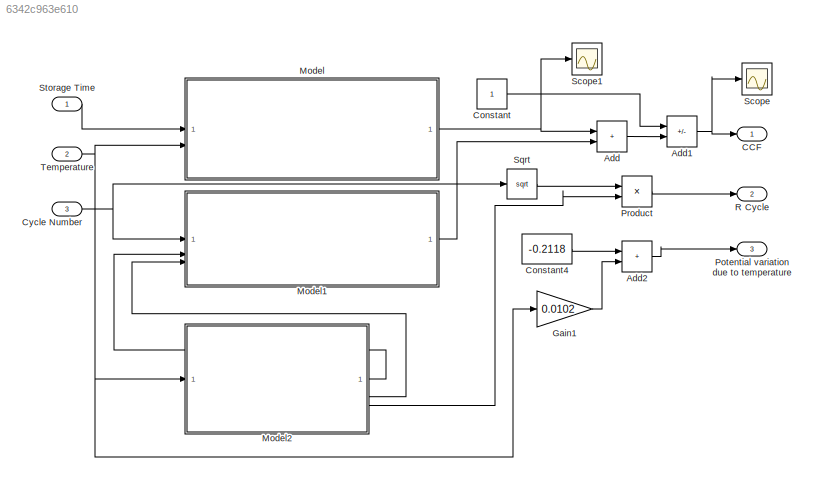
MODEL slx_6342c963e610
KIND model
CONFIG AbsTol = auto
CONFIG EnableMultiTasking = off
CONFIG FixedStep = auto
CONFIG MaxStep = auto
CONFIG MinStep = auto
CONFIG RelTol = 1e-3
CONFIG SampleTimeConstraint = Unconstrained
CONFIG SolverName = VariableStepAuto
CONFIG StartTime = 0.0
CONFIG StopTime = 10.0
BLOCK [Sum] Add
  IconShape = rectangular
BLOCK [Sum] Add1
  IconShape = rectangular
  Inputs = +-
BLOCK [Sum] Add2
  IconShape = rectangular
BLOCK [Outport] CCF
BLOCK [Constant] Constant
BLOCK [Constant] Constant4
  Value = -0.2118
BLOCK [Inport] Cycle Number
  Port = 3
BLOCK [Gain] Gain1
  Gain = 0.0102
BLOCK [ModelReference] Model
  ModelNameDialog = Eq6_StorageLoss.slx
  ModelReferenceVersion = 2.9
BLOCK [ModelReference] Model1
  ModelNameDialog = Eq7_CyclesLoss.slx
  ModelReferenceVersion = 2.4
BLOCK [ModelReference] Model2
  ModelNameDialog = Eq7_8_k1k2k3Linearization.slx
  ModelReferenceVersion = 1.6
BLOCK [Outport] Potential variation due to temperature
  Port = 3
BLOCK [Product] Product
BLOCK [Outport] R Cycle
  Port = 2
BLOCK [Scope] Scope
  Floating = off
  NumInputPorts = 1
  ScopeSpecificationString = Simulink.scopes.TimeScopeBlockCfg('CurrentConfiguration', extmgr.ConfigurationSet(extmgr.Configuration('Core','General UI',true),extmgr.Configuration('Core','Source UI',true),extmgr.Configuration('Sources','WiredSimulink',true),extmgr.Configuration('Visuals','Time Domain',true,'SerializedDisplays',{struct('MinYLimReal','-10090198688100108969520398891615115825124528342823067079388118706924255557280...<+2218ch>
BLOCK [Scope] Scope1
  Floating = off
  NumInputPorts = 1
  ScopeSpecificationString = Simulink.scopes.TimeScopeBlockCfg('CurrentConfiguration', extmgr.ConfigurationSet(extmgr.Configuration('Core','General UI',true),extmgr.Configuration('Core','Source UI',true),extmgr.Configuration('Sources','WiredSimulink',true,'DataLoggingVariableName','ScopeData1'),extmgr.Configuration('Visuals','Time Domain',true,'SerializedDisplays',{struct('MinYLimReal','809019868810010825488571513799020341018...<+2254ch>
BLOCK [Sqrt] Sqrt
BLOCK [Inport] Storage Time
BLOCK [Inport] Temperature
  Port = 2
NET Add1:1 -> CCF:1, Scope:1
LINE Add2:1 -> Potential variation due to temperature:1
LINE Add:1 -> Add1:2
LINE Constant4:1 -> Add2:1
LINE Constant:1 -> Add1:1
NET Cycle Number:1 -> Model1:1, Sqrt:1
LINE Gain1:1 -> Add2:2
LINE Model1:1 -> Add:2
LINE Model2:1 -> Model1:2
LINE Model2:2 -> Model1:3
LINE Model2:3 -> Product:2
NET Model:1 -> Add:1, Scope1:1
LINE Product:1 -> R Cycle:1
LINE Sqrt:1 -> Product:1
LINE Storage Time:1 -> Model:1
NET Temperature:1 -> Gain1:1, Model2:1, Model:2
note: NET lines group one-source signal fan-out (src -> all destinations, sorted); 1:1 wires keep LINE
